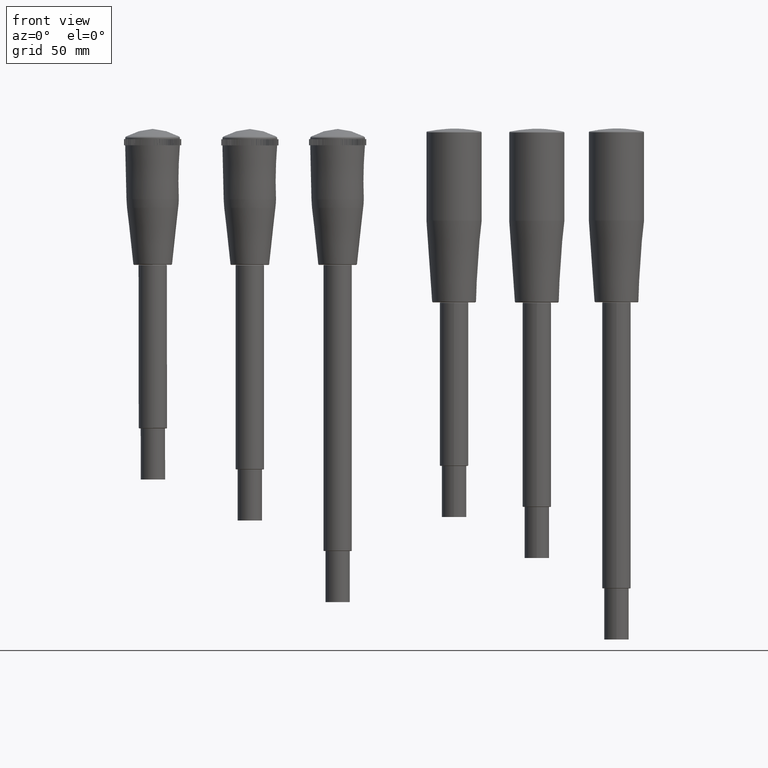
[diagram: clean part render]
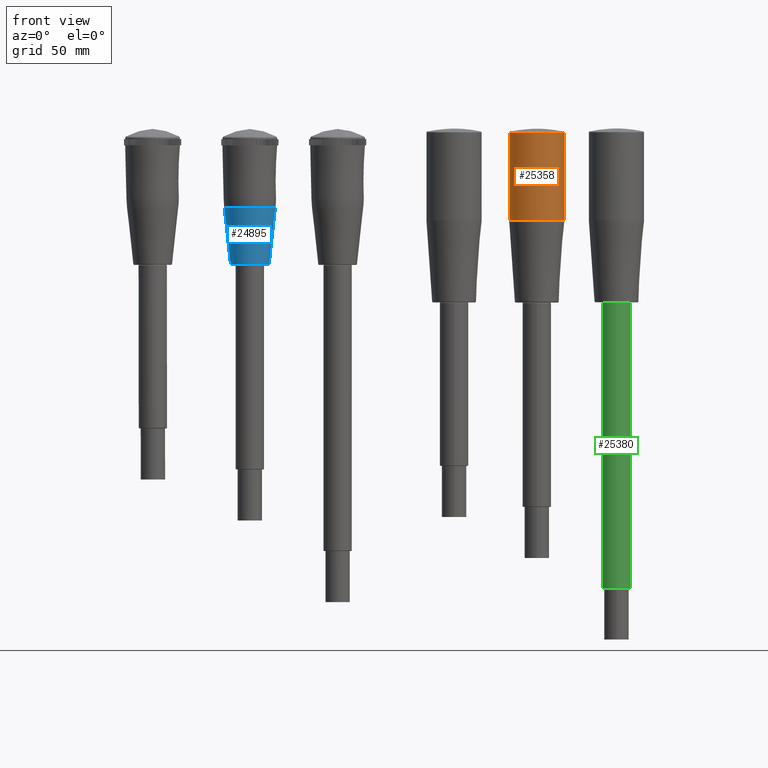
[diagram: same view with three faces highlighted in distinct colors, each labeled with its STEP entity id]
A machine part, front view with three faces highlighted in distinct colors.
Their STEP definitions:

[orange] entity #25358 — the highlighted cylindrical surface (bore or boss wall) has radius 13.5 mm, axis along (-0, 0, 1).
#14=B_SPLINE_CURVE_WITH_KNOTS('',3,(#43576,#43577,#43578,#43579,#43580,
#43581,#43582,#43583,#43584,#43585,#43586,#43587,#43588,#43589,#43590),
 .UNSPECIFIED.,.T.,.F.,(4,1,1,1,1,1,1,1,1,1,1,1,4),(-3.14159265358979,-2.61799656609034,
-2.09440047859089,-1.57080439109143,-1.04720734449098,-0.523610297890524,
-1.32512900696824E-5,0.52358463610911,1.04718252350829,1.57078041090747,
2.09438449180158,2.61798857269569,3.14159265358979),.UNSPECIFIED.);
#273=FACE_BOUND('',#3619,.T.);
#2225=FACE_OUTER_BOUND('',#3618,.T.);
#3618=EDGE_LOOP('',(#23380));
#3619=EDGE_LOOP('',(#23381));
#4951=CIRCLE('',#27988,13.5);
#12258=VERTEX_POINT('',#43574);
#12260=VERTEX_POINT('',#43676);
#15973=EDGE_CURVE('',#12258,#12258,#14,.T.);
#15976=EDGE_CURVE('',#12260,#12260,#4951,.T.);
#23380=ORIENTED_EDGE('',*,*,#15976,.F.);
#23381=ORIENTED_EDGE('',*,*,#15973,.F.);
#24056=CYLINDRICAL_SURFACE('',#27987,13.5);
#25358=ADVANCED_FACE('',(#2225,#273),#24056,.T.);
#27987=AXIS2_PLACEMENT_3D('',#43675,#35630,#35631);
#27988=AXIS2_PLACEMENT_3D('',#43677,#35632,#35633);
#35630=DIRECTION('center_axis',(0.,0.,-1.));
#35631=DIRECTION('ref_axis',(1.,0.,0.));
#35632=DIRECTION('center_axis',(0.,0.,1.));
#35633=DIRECTION('ref_axis',(1.,-1.22464679914735E-16,0.));
#43574=CARTESIAN_POINT('',(-13.5,1.11022302462516E-15,-83.0976427245519));
#43576=CARTESIAN_POINT('Ctrl Pts',(-13.5006944148008,5.3441564800899E-6,
-83.0976405710599));
#43577=CARTESIAN_POINT('Ctrl Pts',(-13.5007000909072,2.35585552845609,-83.0976405710685));
#43578=CARTESIAN_POINT('Ctrl Pts',(-12.2381327335765,7.06521993056286,-83.0976660252282));
#43579=CARTESIAN_POINT('Ctrl Pts',(-7.06752806492,12.2407788029089,-83.0976688334408));
#43580=CARTESIAN_POINT('Ctrl Pts',(3.31666932088696E-5,14.1320129346926,
-83.0976265564313));
#43581=CARTESIAN_POINT('Ctrl Pts',(7.06751447363961,12.2405920561059,-83.0976687303288));
#43582=CARTESIAN_POINT('Ctrl Pts',(12.2381671882298,7.06566117907617,-83.097666029013));
#43583=CARTESIAN_POINT('Ctrl Pts',(14.1322363966673,-6.21802532345017E-5,
-83.0976270759133));
#43584=CARTESIAN_POINT('Ctrl Pts',(12.2381432079697,-7.06559292461862,-83.0976660286707));
#43585=CARTESIAN_POINT('Ctrl Pts',(7.0676048077452,-12.2406114680229,-83.0976687306126));
#43586=CARTESIAN_POINT('Ctrl Pts',(-0.000107691129252797,-14.1319634281803,
-83.0976265561664));
#43587=CARTESIAN_POINT('Ctrl Pts',(-7.06745875489116,-12.240881577763,-83.097668834077));
#43588=CARTESIAN_POINT('Ctrl Pts',(-12.2383455279717,-7.06490922771625,
-83.0976660240631));
#43589=CARTESIAN_POINT('Ctrl Pts',(-13.5006887386077,-2.35588080534745,
-83.0976405710513));
#43590=CARTESIAN_POINT('Ctrl Pts',(-13.5006944148008,5.34415647956976E-6,
-83.0976405710599));
#43675=CARTESIAN_POINT('Origin',(0.,0.,-40.));
#43676=CARTESIAN_POINT('',(-13.5,0.,-40.1048716891695));
#43677=CARTESIAN_POINT('Origin',(0.,0.,-40.1048716891695));

[blue] entity #24895 — the highlighted conical surface has half-angle 6.183 deg.
#177=CONICAL_SURFACE('',#27062,11.125,6.18293016594826);
#227=FACE_BOUND('',#3110,.T.);
#1762=FACE_OUTER_BOUND('',#3109,.T.);
#3109=EDGE_LOOP('',(#20857));
#3110=EDGE_LOOP('',(#20858));
#4497=CIRCLE('',#27061,9.54833274502965);
#4498=CIRCLE('',#27063,12.5214253734924);
#11402=VERTEX_POINT('',#40685);
#11403=VERTEX_POINT('',#40688);
#14714=EDGE_CURVE('',#11402,#11402,#4497,.T.);
#14715=EDGE_CURVE('',#11403,#11403,#4498,.T.);
#20857=ORIENTED_EDGE('',*,*,#14715,.F.);
#20858=ORIENTED_EDGE('',*,*,#14714,.F.);
#24895=ADVANCED_FACE('',(#1762,#227),#177,.T.);
#27061=AXIS2_PLACEMENT_3D('',#40686,#32978,#32979);
#27062=AXIS2_PLACEMENT_3D('',#40687,#32980,#32981);
#27063=AXIS2_PLACEMENT_3D('',#40689,#32982,#32983);
#32978=DIRECTION('center_axis',(-1.,0.,0.));
#32979=DIRECTION('ref_axis',(0.,-1.,3.06161699786838E-17));
#32980=DIRECTION('center_axis',(1.,0.,0.));
#32981=DIRECTION('ref_axis',(0.,1.,0.));
#32982=DIRECTION('center_axis',(1.,0.,0.));
#32983=DIRECTION('ref_axis',(0.,0.,-1.));
#40685=CARTESIAN_POINT('',(0.446148415658303,9.54833274502965,-2.92333378334861E-15));
#40686=CARTESIAN_POINT('Origin',(0.446148415658303,0.,-1.4616668916743E-15));
#40687=CARTESIAN_POINT('Origin',(15.,0.,0.));
#40688=CARTESIAN_POINT('',(27.8900803706993,-1.533432350441E-15,12.5214253734924));
#40689=CARTESIAN_POINT('Origin',(27.8900803706993,0.,0.));

[green] entity #25380 — the highlighted cylindrical surface (bore or boss wall) has radius 6.97 mm, axis along (-0, 0, 1).
#290=FACE_BOUND('',#3658,.T.);
#2247=FACE_OUTER_BOUND('',#3657,.T.);
#3657=EDGE_LOOP('',(#23424));
#3658=EDGE_LOOP('',(#23425));
#4968=CIRCLE('',#28030,6.97000000000002);
#4970=CIRCLE('',#28033,6.97000000000002);
#12279=VERTEX_POINT('',#43910);
#12281=VERTEX_POINT('',#43915);
#15996=EDGE_CURVE('',#12279,#12279,#4968,.T.);
#15998=EDGE_CURVE('',#12281,#12281,#4970,.T.);
#23424=ORIENTED_EDGE('',*,*,#15998,.F.);
#23425=ORIENTED_EDGE('',*,*,#15996,.F.);
#24062=CYLINDRICAL_SURFACE('',#28032,6.97000000000002);
#25380=ADVANCED_FACE('',(#2247,#290),#24062,.T.);
#28030=AXIS2_PLACEMENT_3D('',#43911,#35716,#35717);
#28032=AXIS2_PLACEMENT_3D('',#43914,#35720,#35721);
#28033=AXIS2_PLACEMENT_3D('',#43916,#35722,#35723);
#35716=DIRECTION('center_axis',(1.,0.,0.));
#35717=DIRECTION('ref_axis',(0.,-1.,0.));
#35720=DIRECTION('center_axis',(1.,0.,0.));
#35721=DIRECTION('ref_axis',(0.,1.,0.));
#35722=DIRECTION('center_axis',(-1.,0.,0.));
#35723=DIRECTION('ref_axis',(0.,-1.,0.));
#43910=CARTESIAN_POINT('',(164.8,6.97000000000002,8.53578819005708E-16));
#43911=CARTESIAN_POINT('Origin',(164.8,0.,0.));
#43914=CARTESIAN_POINT('Origin',(95.,0.,0.));
#43915=CARTESIAN_POINT('',(25.2,6.97000000000002,-8.53578819005708E-16));
#43916=CARTESIAN_POINT('Origin',(25.2,0.,0.));